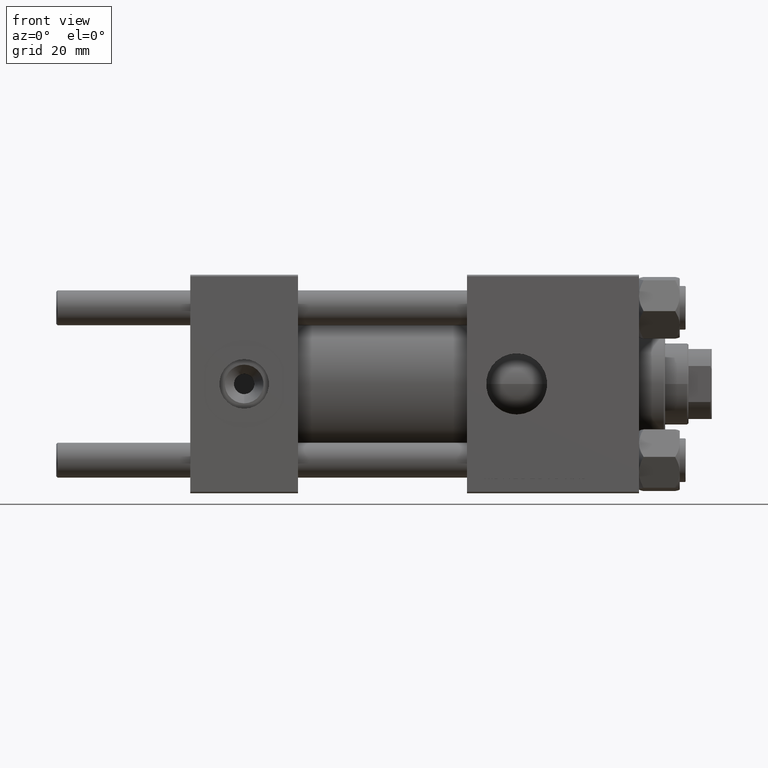
[diagram: clean part render]
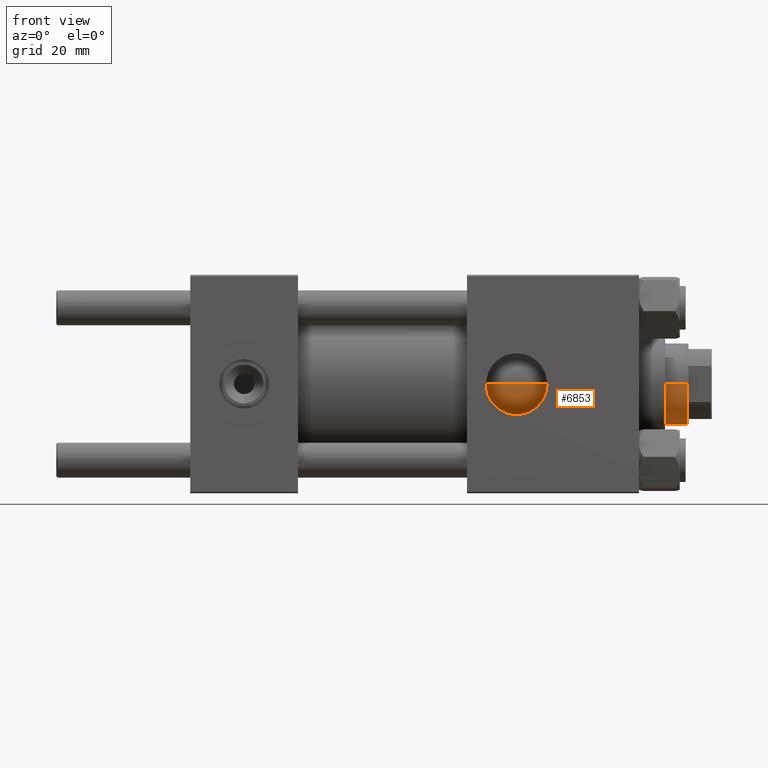
[diagram: same view with one face highlighted and labeled with its STEP entity id]
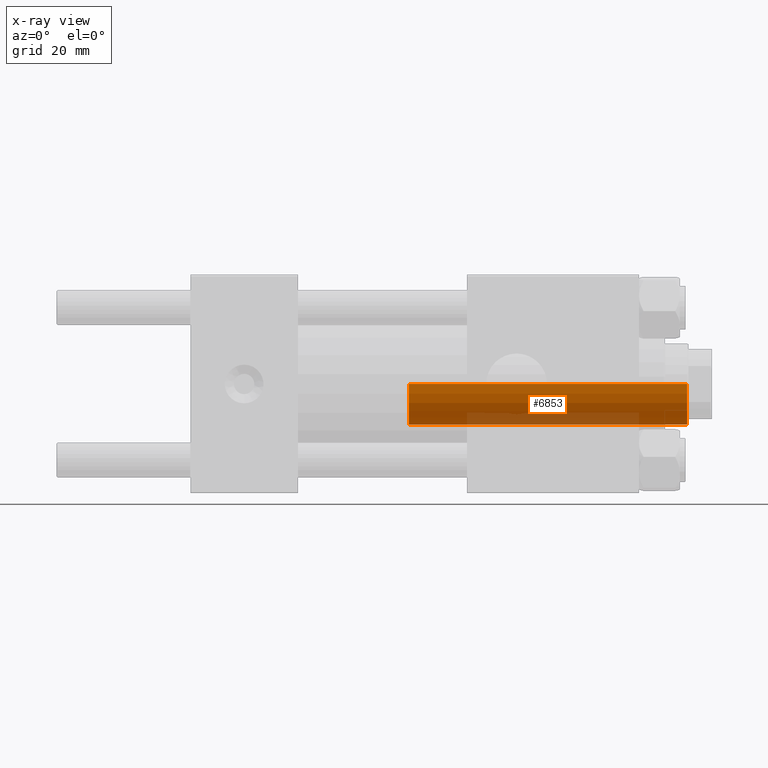
[diagram: x-ray of the same camera — body ghosted, the highlighted face saturated]
A machine part, front view. The second image highlights one B-rep face of the part: STEP entity #6853.
The next image is the same camera in x-ray: the body ghosted, the highlighted face saturated — about 18% of this face is hidden behind the body in this view.
In plain terms, the highlighted cylindrical surface (partial cylindrical patch) has radius 14 mm, axis along (-1, 0, 0).
Its self-contained STEP definition (entity closure, byte-faithful):
#212 = CARTESIAN_POINT ( 'NONE',  ( 0.000000000000000000, 0.000000000000000000, 134.0000000000000000 ) ) ;
#944 = VERTEX_POINT ( 'NONE', #24046 ) ;
#1123 = LINE ( 'NONE', #5339, #20107 ) ;
#1517 = EDGE_CURVE ( 'NONE', #48576, #28057, #2043, .T. ) ;
#1585 = DIRECTION ( 'NONE',  ( 0.000000000000000000, 0.000000000000000000, -1.000000000000000000 ) ) ;
#2043 = CIRCLE ( 'NONE', #35676, 14.00000000000000178 ) ;
#2294 = CIRCLE ( 'NONE', #24173, 14.00000000000000178 ) ;
#4415 = DIRECTION ( 'NONE',  ( -1.000000000000000000, 0.000000000000000000, 0.000000000000000000 ) ) ;
#4676 = CYLINDRICAL_SURFACE ( 'NONE', #12303, 14.00000000000000178 ) ;
#5339 = CARTESIAN_POINT ( 'NONE',  ( 14.00000000000000178, 1.714505518806294835E-15, 134.0000000000000000 ) ) ;
#6853 = ADVANCED_FACE ( 'NONE', ( #24685 ), #4676, .T. ) ;
#8726 = CARTESIAN_POINT ( 'NONE',  ( -14.00000000000000178, 0.000000000000000000, 134.0000000000000000 ) ) ;
#10613 = CARTESIAN_POINT ( 'NONE',  ( 14.00000000000000178, 1.714505518806294835E-15, 133.5000000000000284 ) ) ;
#10816 = VERTEX_POINT ( 'NONE', #13741 ) ;
#11018 = ORIENTED_EDGE ( 'NONE', *, *, #30968, .F. ) ;
#12303 = AXIS2_PLACEMENT_3D ( 'NONE', #212, #25207, #4415 ) ;
#13741 = CARTESIAN_POINT ( 'NONE',  ( -14.00000000000000178, 0.000000000000000000, 38.00000000000000000 ) ) ;
#17176 = DIRECTION ( 'NONE',  ( -0.000000000000000000, -0.000000000000000000, -1.000000000000000000 ) ) ;
#17790 = DIRECTION ( 'NONE',  ( 0.000000000000000000, 0.000000000000000000, 1.000000000000000000 ) ) ;
#18291 = ORIENTED_EDGE ( 'NONE', *, *, #36420, .T. ) ;
#20107 = VECTOR ( 'NONE', #17176, 1000.000000000000000 ) ;
#24046 = CARTESIAN_POINT ( 'NONE',  ( 14.00000000000000178, 1.714505518806294835E-15, 38.00000000000000000 ) ) ;
#24173 = AXIS2_PLACEMENT_3D ( 'NONE', #30146, #17790, #37794 ) ;
#24203 = EDGE_LOOP ( 'NONE', ( #45482, #39327, #18291, #11018 ) ) ;
#24685 = FACE_OUTER_BOUND ( 'NONE', #24203, .T. ) ;
#24784 = LINE ( 'NONE', #8726, #38252 ) ;
#25207 = DIRECTION ( 'NONE',  ( -0.000000000000000000, -0.000000000000000000, -1.000000000000000000 ) ) ;
#28057 = VERTEX_POINT ( 'NONE', #10613 ) ;
#30146 = CARTESIAN_POINT ( 'NONE',  ( 0.000000000000000000, 0.000000000000000000, 38.00000000000000000 ) ) ;
#30968 = EDGE_CURVE ( 'NONE', #48576, #10816, #24784, .T. ) ;
#32531 = CARTESIAN_POINT ( 'NONE',  ( -14.00000000000000178, 0.000000000000000000, 133.5000000000000284 ) ) ;
#32948 = DIRECTION ( 'NONE',  ( -0.000000000000000000, -0.000000000000000000, -1.000000000000000000 ) ) ;
#33706 = CARTESIAN_POINT ( 'NONE',  ( 0.000000000000000000, 0.000000000000000000, 133.5000000000000284 ) ) ;
#35676 = AXIS2_PLACEMENT_3D ( 'NONE', #33706, #1585, #37648 ) ;
#36420 = EDGE_CURVE ( 'NONE', #944, #10816, #2294, .T. ) ;
#37648 = DIRECTION ( 'NONE',  ( 1.000000000000000000, 0.000000000000000000, 0.000000000000000000 ) ) ;
#37794 = DIRECTION ( 'NONE',  ( 1.000000000000000000, 0.000000000000000000, 0.000000000000000000 ) ) ;
#38252 = VECTOR ( 'NONE', #32948, 1000.000000000000000 ) ;
#39327 = ORIENTED_EDGE ( 'NONE', *, *, #43811, .T. ) ;
#43811 = EDGE_CURVE ( 'NONE', #28057, #944, #1123, .T. ) ;
#45482 = ORIENTED_EDGE ( 'NONE', *, *, #1517, .T. ) ;
#48576 = VERTEX_POINT ( 'NONE', #32531 ) ;